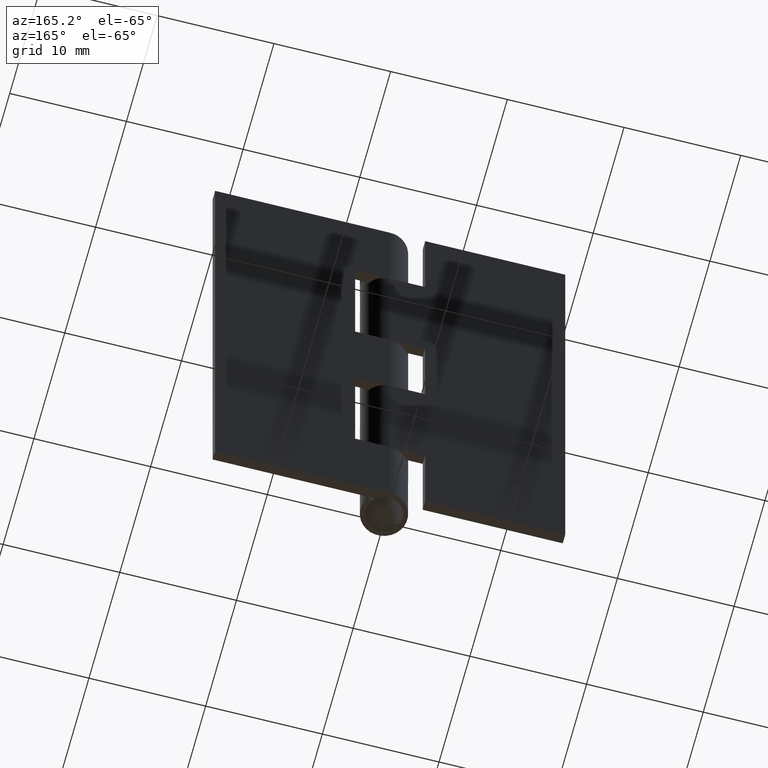
[diagram: clean part render]
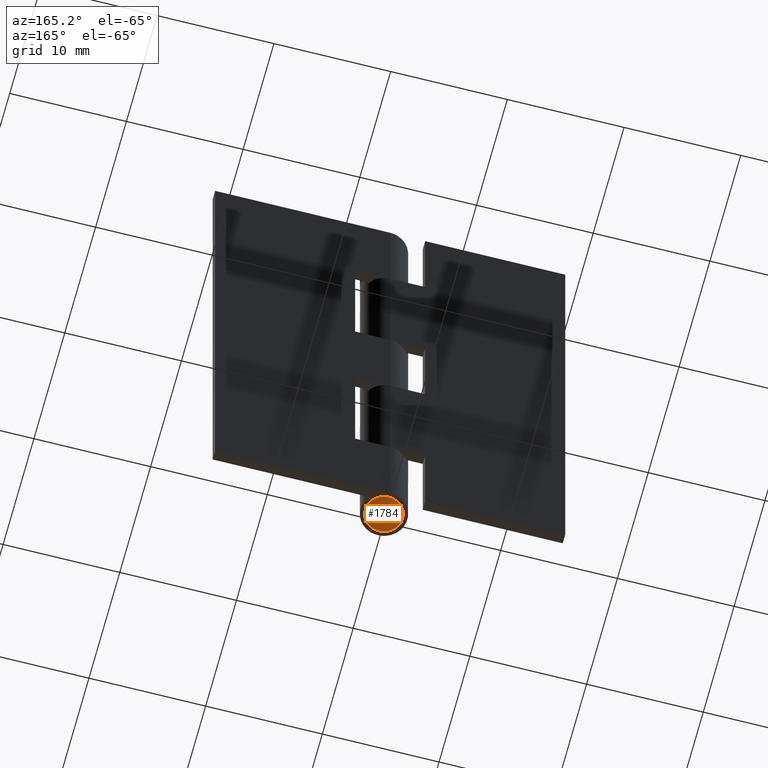
[diagram: same view with one face highlighted and labeled with its STEP entity id]
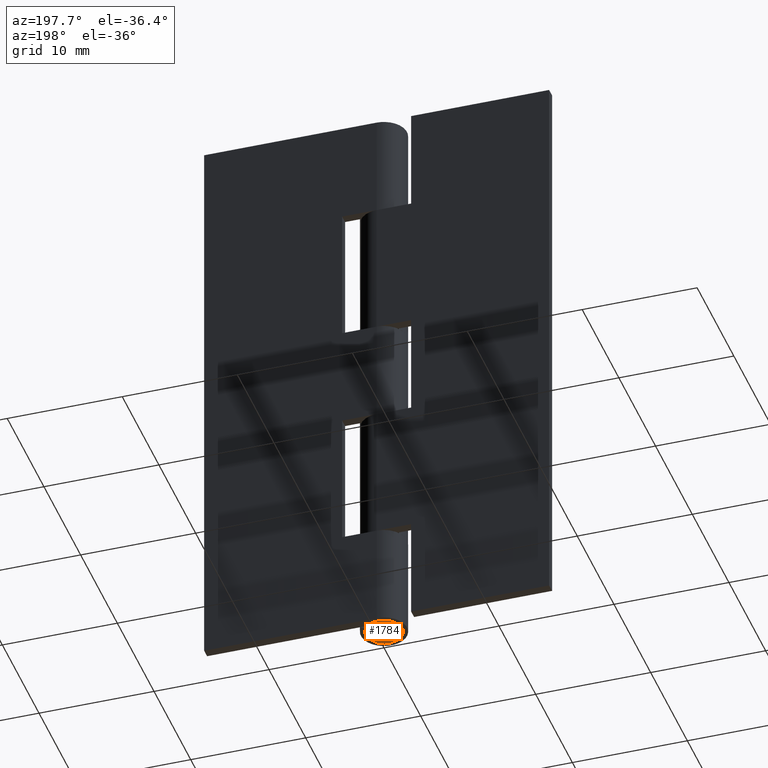
[diagram: same view with one face highlighted and labeled with its STEP entity id]
A machine part, auxiliary view. The second image highlights one B-rep face of the part: STEP entity #1784.
A second angle (auxiliary view) of the same face is appended — the face is thin or edge-on in the first view.
In plain terms, the highlighted face is a freeform B-spline surface patch.
Its self-contained STEP definition (entity closure, byte-faithful):
#1714=CARTESIAN_POINT('',(-1.401453447896398,1.401453447896398,0.695117521368881));
#1715=CARTESIAN_POINT('',(-0.847878636513844,1.695757273027688,0.124294984171519));
#1716=CARTESIAN_POINT('',(0.847878636513844,1.695757273027688,0.124294984171519));
#1717=CARTESIAN_POINT('',(1.401453447896398,1.401453447896398,0.695117521368881));
#1718=CARTESIAN_POINT('',(-1.695757273027688,0.847878636513844,0.124294984171518));
#1719=CARTESIAN_POINT('',(-1.073262740741702,1.073262740741702,-0.750000999999999));
#1720=CARTESIAN_POINT('',(1.073262740741702,1.073262740741702,-0.750000999999999));
#1721=CARTESIAN_POINT('',(1.695757273027687,0.847878636513844,0.124294984171518));
#1722=CARTESIAN_POINT('',(-1.695757273027688,-0.847878636513843,0.124294984171518));
#1723=CARTESIAN_POINT('',(-1.073262740741702,-1.073262740741701,-0.750000999999999));
#1724=CARTESIAN_POINT('',(1.073262740741702,-1.073262740741701,-0.750000999999999));
#1725=CARTESIAN_POINT('',(1.695757273027687,-0.847878636513843,0.124294984171518));
#1726=CARTESIAN_POINT('',(-1.401453447896398,-1.401453447896398,0.695117521368880));
#1727=CARTESIAN_POINT('',(-0.847878636513844,-1.695757273027687,0.124294984171517));
#1728=CARTESIAN_POINT('',(0.847878636513844,-1.695757273027687,0.124294984171517));
#1729=CARTESIAN_POINT('',(1.401453447896398,-1.401453447896398,0.695117521368880));
#1737=(BOUNDED_SURFACE()B_SPLINE_SURFACE(2,2,((#1714,#1718,#1722,#1726),(#1715,#1719,#1723,#1727),(#1716,#1720,#1724,#1728),(#1717,#1721,#1725,#1729)),.UNSPECIFIED.,.F.,.F.,.U.)B_SPLINE_SURFACE_WITH_KNOTS((3,1,3),(3,1,3),(0.026886804616451,1.0,1.973113195383549),(0.026886804616451,1.0,1.973113195383549),.UNSPECIFIED.)GEOMETRIC_REPRESENTATION_ITEM()RATIONAL_B_SPLINE_SURFACE(((1.531642370786821,1.265821185393410,1.265821185393410,1.531642370786821),(1.265821185393410,1.0,1.0,1.265821185393410),(1.265821185393410,1.0,1.0,1.265821185393410),(1.531642370786821,1.265821185393410,1.265821185393410,1.531642370786821)))REPRESENTATION_ITEM('')SURFACE());
#1738=CARTESIAN_POINT('',(-1.600000988541260,0.0,1.110223E-015));
#1739=VERTEX_POINT('',#1738);
#1740=CARTESIAN_POINT('',(1.600000988541260,0.0,0.0));
#1741=VERTEX_POINT('',#1740);
#1742=CARTESIAN_POINT('',(-1.600000988541260,0.0,1.110223E-015));
#1743=CARTESIAN_POINT('',(-1.600099657975073,0.176724180549584,1.110223E-015));
#1744=CARTESIAN_POINT('',(-1.550699828295482,0.471171103280436,1.110223E-015));
#1745=CARTESIAN_POINT('',(-1.356422275741102,0.881931708077791,1.110223E-015));
#1746=CARTESIAN_POINT('',(-1.096608398593395,1.190765958594946,1.110223E-015));
#1747=CARTESIAN_POINT('',(-0.782720827161769,1.408867413454879,1.110223E-015));
#1748=CARTESIAN_POINT('',(-0.455649296544582,1.546717548001379,1.110223E-015));
#1749=CARTESIAN_POINT('',(-0.138003623142824,1.605848909153572,1.110221E-015));
#1750=CARTESIAN_POINT('',(0.203490464082289,1.597464667630107,1.110228E-015));
#1751=CARTESIAN_POINT('',(0.499031639044263,1.531097527190236,1.110207E-015));
#1752=CARTESIAN_POINT('',(0.781302075536461,1.405969903651872,1.110275E-015));
#1753=CARTESIAN_POINT('',(1.009889324791400,1.251192874956436,1.110031E-015));
#1754=CARTESIAN_POINT('',(1.213174487688334,1.055255711750819,1.115512E-015));
#1755=CARTESIAN_POINT('',(1.395691136369592,0.806005976269765,1.170108E-015));
#1756=CARTESIAN_POINT('',(1.555439259689238,0.451554818400557,7.662099E-016));
#1757=CARTESIAN_POINT('',(1.600072734085033,0.163623749044957,1.888212E-015));
#1758=CARTESIAN_POINT('',(1.600000988541260,0.0,0.0));
#1759=B_SPLINE_CURVE_WITH_KNOTS('',3,(#1742,#1743,#1744,#1745,#1746,#1747,#1748,#1749,#1750,#1751,#1752,#1753,#1754,#1755,#1756,#1757,#1758),.UNSPECIFIED.,.F.,.U.,(4,1,1,1,1,1,1,1,1,1,1,1,1,1,4),(0.000000211126212,0.530139143637799,0.883568140087998,1.354826239819541,1.727905814871302,2.022438824067518,2.415118203677209,2.689986792734511,3.043435254970345,3.318315938176603,3.612857074130309,3.868116456196207,4.162653934910097,4.535728746765498,5.026582890876731),.UNSPECIFIED.);
#1760=EDGE_CURVE('',#1739,#1741,#1759,.T.);
#1761=ORIENTED_EDGE('',*,*,#1760,.T.);
#1762=CARTESIAN_POINT('',(1.600000988541260,0.0,0.0));
#1763=CARTESIAN_POINT('',(1.600098302954577,-0.176726214528747,1.800938E-015));
#1764=CARTESIAN_POINT('',(1.550696111720527,-0.471165433999172,7.657265E-016));
#1765=CARTESIAN_POINT('',(1.364862718153453,-0.864065259916543,1.151664E-015));
#1766=CARTESIAN_POINT('',(1.132161474023655,-1.151174240033969,1.131640E-015));
#1767=CARTESIAN_POINT('',(0.829817507957558,-1.384159805222758,1.107049E-015));
#1768=CARTESIAN_POINT('',(0.512048094480548,-1.529695481944122,1.110221E-015));
#1769=CARTESIAN_POINT('',(0.138879323553390,-1.608700666246109,1.110224E-015));
#1770=CARTESIAN_POINT('',(-0.230860044653689,-1.599641559290997,1.110223E-015));
#1771=CARTESIAN_POINT('',(-0.573553678307880,-1.504765658552305,1.110223E-015));
#1772=CARTESIAN_POINT('',(-0.849345395176114,-1.365938740307280,1.110223E-015));
#1773=CARTESIAN_POINT('',(-1.070064131075133,-1.200130789871734,1.110223E-015));
#1774=CARTESIAN_POINT('',(-1.290507601519601,-0.965776091438395,1.110223E-015));
#1775=CARTESIAN_POINT('',(-1.468742164707493,-0.672509787199846,1.110223E-015));
#1776=CARTESIAN_POINT('',(-1.578085058761855,-0.327233726599441,1.110223E-015));
#1777=CARTESIAN_POINT('',(-1.600012765374348,-0.104711253641192,1.110223E-015));
#1778=CARTESIAN_POINT('',(-1.600000988541260,0.0,1.110223E-015));
#1779=B_SPLINE_CURVE_WITH_KNOTS('',3,(#1762,#1763,#1764,#1765,#1766,#1767,#1768,#1769,#1770,#1771,#1772,#1773,#1774,#1775,#1776,#1777,#1778),.UNSPECIFIED.,.F.,.U.,(4,1,1,1,1,1,1,1,1,1,1,1,1,1,4),(0.000000211126403,0.530139143637968,0.883568140088128,1.295918626947798,1.629717180263151,2.022438824067590,2.336605215178205,2.768516756260441,3.121967995168243,3.396858082362900,3.691397171115526,3.946658294442741,4.359003679659754,4.712448029065955,5.026582890876731),.UNSPECIFIED.);
#1780=EDGE_CURVE('',#1741,#1739,#1779,.T.);
#1781=ORIENTED_EDGE('',*,*,#1780,.T.);
#1782=EDGE_LOOP('',(#1761,#1781));
#1783=FACE_OUTER_BOUND('',#1782,.T.);
#1784=ADVANCED_FACE('',(#1783),#1737,.T.);